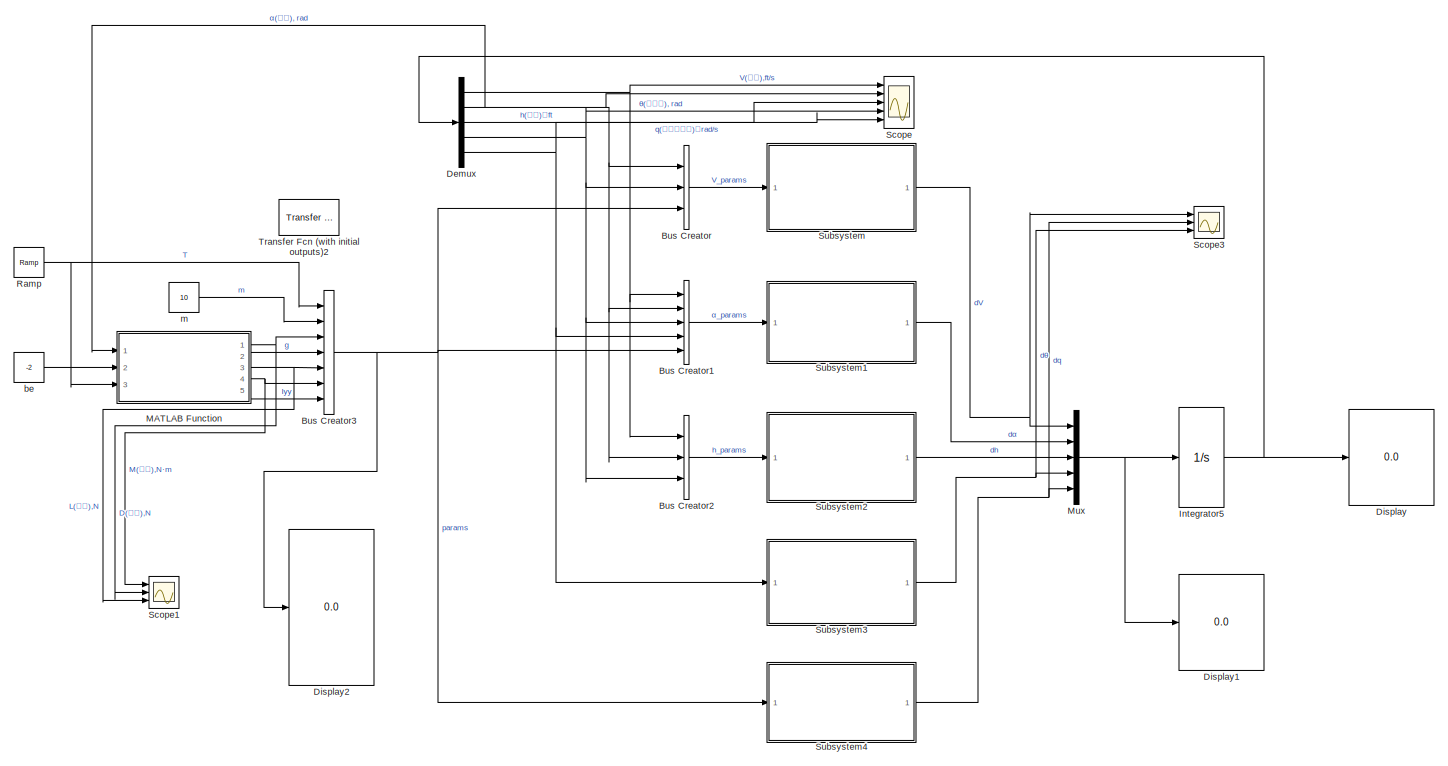
[diagram: root canvas - part 1/2, most of the canvas]
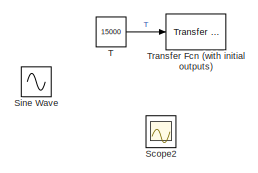
[diagram: root canvas - part 2/2, bottom left region]
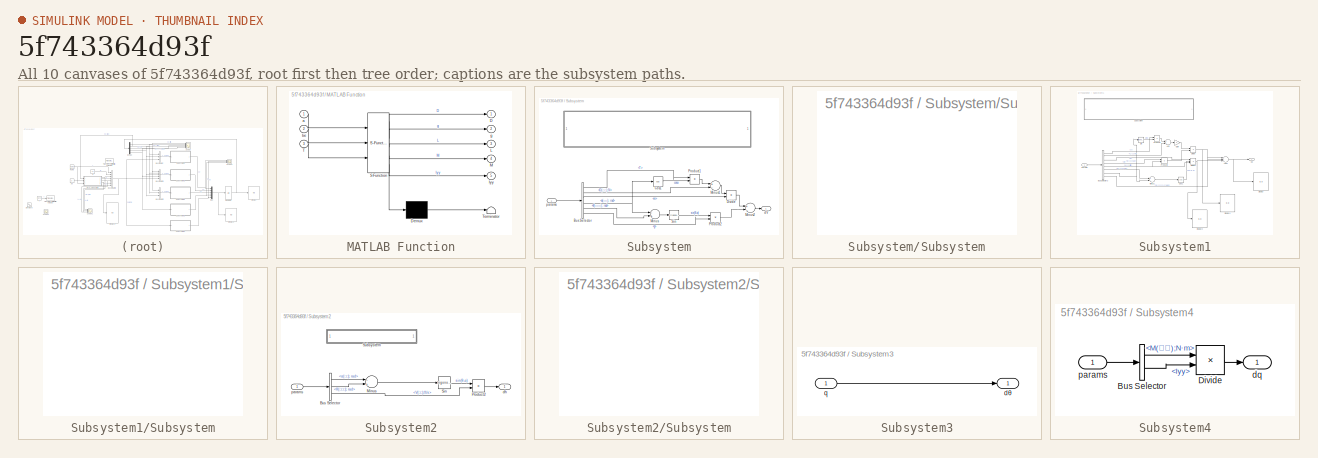
[diagram: thumbnail index - all 10 canvases of the model, root first then tree order]
MODEL slx_5f743364d93f
KIND model
CONFIG AbsTol = auto
CONFIG EnableMultiTasking = off
CONFIG FixedStep = 0.1
CONFIG MaxStep = auto
CONFIG MinStep = auto
CONFIG RelTol = 1e-3
CONFIG SampleTimeConstraint = Unconstrained
CONFIG Solver = VariableStepAuto
CONFIG SolverName = VariableStepAuto
CONFIG StartTime = 0.0
CONFIG StopTime = 20
BLOCK [BusCreator] Bus Creator
  DisplayOption = bar
  InheritFromInputs = on
  Inputs = 3
  Ports = [3, 1]
BLOCK [BusCreator] Bus Creator1
  DisplayOption = bar
  InheritFromInputs = on
  Inputs = 5
  Ports = [5, 1]
BLOCK [BusCreator] Bus Creator2
  DisplayOption = bar
  InheritFromInputs = on
  Inputs = 3
  Ports = [3, 1]
BLOCK [BusCreator] Bus Creator3
  DisplayOption = bar
  InheritFromInputs = on
  Inputs = 7
  Ports = [7, 1]
BLOCK [Demux] Demux
  DisplayOption = bar
  Outputs = 5
  Ports = [1, 5]
BLOCK [Display] Display
  Decimation = 1
  Ports = [1]
BLOCK [Display] Display1
  Decimation = 1
  Ports = [1]
BLOCK [Display] Display2
  Decimation = 1
  Ports = [1]
BLOCK [Integrator] Integrator5
  InitialCondition = eps
  Ports = [1, 1]
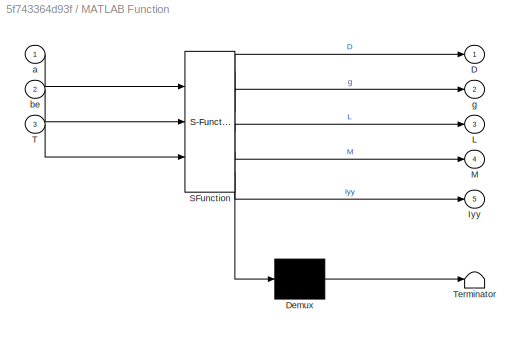
BLOCK [SubSystem] MATLAB Function
  ErrorFcn = Stateflow.Translate.translate
  PermitHierarchicalResolution = ExplicitOnly
  Ports = [3, 5]
  RequestExecContextInheritance = off
  SFBlockType = MATLAB Function
  TreatAsAtomicUnit = on
BLOCK [Demux] MATLAB Function/ Demux 
  Outputs = 1
  Ports = [1, 1]
BLOCK [S-Function] MATLAB Function/ SFunction 
  EnableBusSupport = on
  FunctionName = sf_sfun
  PortCounts = [3 6]
  Ports = [3, 6]
  SFcnIsStateOwnerBlock = off
  SFunctionDeploymentMode = off
  Tag = Stateflow S-Function 2
BLOCK [Terminator] MATLAB Function/ Terminator 
BLOCK [Outport] MATLAB Function/D
  IconDisplay = Port number
BLOCK [Outport] MATLAB Function/Iyy
  IconDisplay = Port number
  Port = 5
BLOCK [Outport] MATLAB Function/L
  IconDisplay = Port number
  Port = 3
BLOCK [Outport] MATLAB Function/M
  IconDisplay = Port number
  Port = 4
BLOCK [Inport] MATLAB Function/T
  IconDisplay = Port number
  Port = 3
BLOCK [Inport] MATLAB Function/a
  IconDisplay = Port number
BLOCK [Inport] MATLAB Function/be
  IconDisplay = Port number
  Port = 2
BLOCK [Outport] MATLAB Function/g
  IconDisplay = Port number
  Port = 2
BLOCK [Mux] Mux
  DisplayOption = bar
  Inputs = 5
  Ports = [5, 1]
BLOCK [Reference] Ramp  REF=simulink/Sources/Ramp
  Ports = [0, 1]
  SourceBlock = simulink/Sources/Ramp
  SourceProductBaseCode = SL
  SourceProductName = Simulink
  SourceType = Ramp
BLOCK [Scope] Scope
  Floating = off
  NumInputPorts = 5
  Ports = [5]
  ScopeSpecificationString = Simulink.scopes.TimeScopeBlockCfg('CurrentConfiguration', extmgr.ConfigurationSet(extmgr.Configuration('Core','General UI',true,'FigureColor',[1 1 1]),extmgr.Configuration('Core','Source UI',true),extmgr.Configuration('Sources','WiredSimulink',true),extmgr.Configuration('Visuals','Time Domain',true,'SerializedDisplays',{struct('MinYLimReal','-366.29033','MaxYLimReal','3296.613','YLabelReal','','Mi...<+5696ch>
BLOCK [Scope] Scope1
  Floating = off
  NumInputPorts = 3
  Ports = [3]
  ScopeSpecificationString = Simulink.scopes.TimeScopeBlockCfg('CurrentConfiguration', extmgr.ConfigurationSet(extmgr.Configuration('Core','General UI',true,'FigureColor',[1 1 1]),extmgr.Configuration('Core','Source UI',true),extmgr.Configuration('Sources','WiredSimulink',true,'DataLoggingVariableName','ScopeData1'),extmgr.Configuration('Visuals','Time Domain',true,'SerializedDisplays',{struct('MinYLimReal','15635.01871','Max...<+4000ch>
BLOCK [Scope] Scope2
  Floating = off
  NumInputPorts = 3
  Ports = [3]
  ScopeSpecificationString = Simulink.scopes.TimeScopeBlockCfg('CurrentConfiguration', extmgr.ConfigurationSet(extmgr.Configuration('Core','General UI',true,'FigureColor',[1 1 1]),extmgr.Configuration('Core','Source UI',true),extmgr.Configuration('Sources','WiredSimulink',true,'DataLoggingVariableName','ScopeData2'),extmgr.Configuration('Visuals','Time Domain',true,'SerializedDisplays',{struct('MinYLimReal','22915.45205','Max...<+3964ch>
BLOCK [Scope] Scope3
  Floating = off
  NumInputPorts = 3
  Ports = [3]
  ScopeSpecificationString = Simulink.scopes.TimeScopeBlockCfg('CurrentConfiguration', extmgr.ConfigurationSet(extmgr.Configuration('Core','General UI',true,'FigureColor',[1 1 1]),extmgr.Configuration('Core','Source UI',true),extmgr.Configuration('Sources','WiredSimulink',true,'DataLoggingVariableName','ScopeData3'),extmgr.Configuration('Visuals','Time Domain',true,'SerializedDisplays',{struct('MinYLimReal','-3086.74716','Max...<+3963ch>
BLOCK [Sin] Sine Wave
  Amplitude = 2500
  Bias = 15000
  Frequency = 0.5
  Ports = [0, 1]
  SampleTime = 0
BLOCK [SubSystem] Subsystem
  Ports = [1, 1]
  RequestExecContextInheritance = off
BLOCK [BusSelector] Subsystem/Bus Selector
  OutputAsBus = off
  OutputSignals = params.T,params.D(阻力);N,params.m,α(攻角);  rad,θ(俯仰角); rad,params.g
  Ports = [1, 6]
BLOCK [Trigonometry] Subsystem/Cos1
  Operator = cos
  Ports = [1, 1]
BLOCK [Product] Subsystem/Divide
  InputSameDT = off
  Inputs = */
  OutDataTypeStr = Inherit: Inherit via internal rule
  Ports = [2, 1]
  RndMeth = Floor
  SaturateOnIntegerOverflow = off
BLOCK [Sum] Subsystem/Minus
  InputSameDT = off
  Inputs = -+
  OutDataTypeStr = Inherit: Inherit via internal rule
  Ports = [2, 1]
  SaturateOnIntegerOverflow = off
BLOCK [Sum] Subsystem/Minus1
  InputSameDT = off
  Inputs = +-
  OutDataTypeStr = Inherit: Inherit via internal rule
  Ports = [2, 1]
  SaturateOnIntegerOverflow = off
BLOCK [Sum] Subsystem/Minus2
  InputSameDT = off
  Inputs = +-
  OutDataTypeStr = Inherit: Inherit via internal rule
  Ports = [2, 1]
  SaturateOnIntegerOverflow = off
BLOCK [Product] Subsystem/Product1
  InputSameDT = off
  OutDataTypeStr = Inherit: Inherit via internal rule
  Ports = [2, 1]
  RndMeth = Floor
  SaturateOnIntegerOverflow = off
BLOCK [Product] Subsystem/Product2
  InputSameDT = off
  OutDataTypeStr = Inherit: Inherit via internal rule
  Ports = [2, 1]
  RndMeth = Floor
  SaturateOnIntegerOverflow = off
BLOCK [Trigonometry] Subsystem/Sin
  Ports = [1, 1]
BLOCK [SubSystem] Subsystem/Subsystem
  Ports = []
  RequestExecContextInheritance = off
BLOCK [Outport] Subsystem/dV
  IconDisplay = Port number
BLOCK [Inport] Subsystem/params
  IconDisplay = Port number
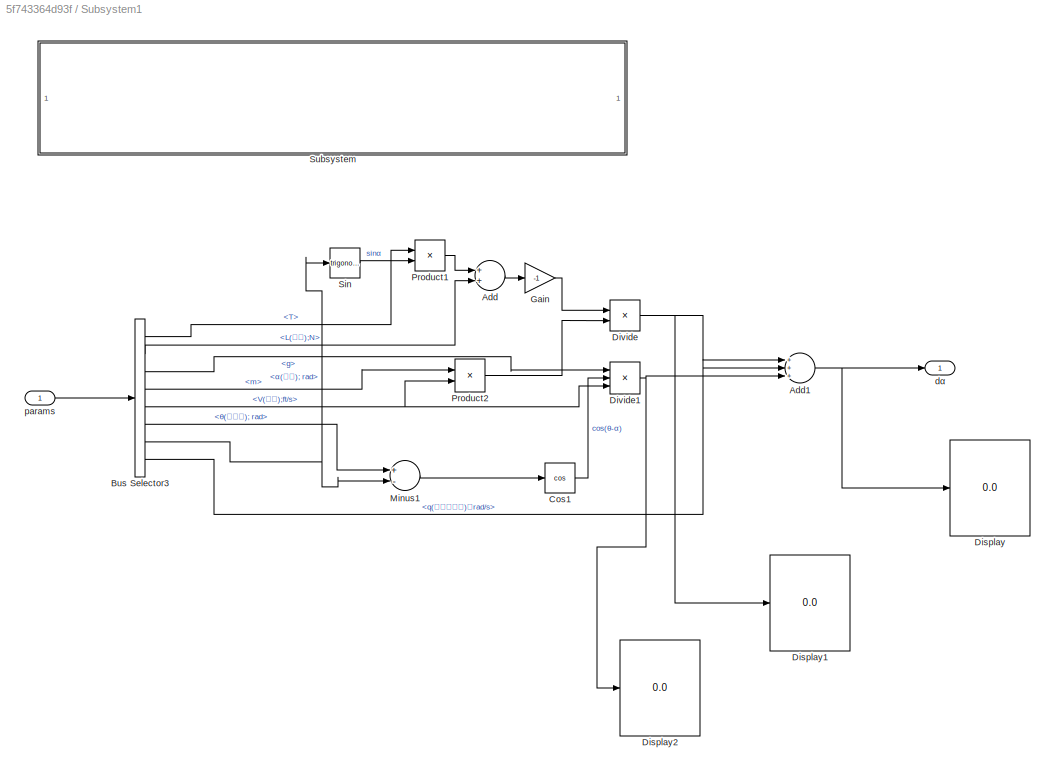
BLOCK [SubSystem] Subsystem1
  Ports = [1, 1]
  RequestExecContextInheritance = off
BLOCK [Sum] Subsystem1/Add
  InputSameDT = off
  OutDataTypeStr = Inherit: Inherit via internal rule
  Ports = [2, 1]
  SaturateOnIntegerOverflow = off
BLOCK [Sum] Subsystem1/Add1
  InputSameDT = off
  Inputs = +++
  OutDataTypeStr = Inherit: Inherit via internal rule
  Ports = [3, 1]
  SaturateOnIntegerOverflow = off
BLOCK [BusSelector] Subsystem1/Bus Selector3
  OutputAsBus = off
  OutputSignals = params.T,params.L(升力);N,params.g,params.m,V(速度);ft/s,θ(俯仰角); rad,α(攻角);  rad,q(俯仰角速率)，rad/s
  Ports = [1, 8]
BLOCK [Trigonometry] Subsystem1/Cos1
  Operator = cos
  Ports = [1, 1]
BLOCK [Display] Subsystem1/Display
  Decimation = 1
  Ports = [1]
BLOCK [Display] Subsystem1/Display1
  Decimation = 1
  Ports = [1]
BLOCK [Display] Subsystem1/Display2
  Decimation = 1
  Ports = [1]
BLOCK [Product] Subsystem1/Divide
  InputSameDT = off
  Inputs = */
  OutDataTypeStr = Inherit: Inherit via internal rule
  Ports = [2, 1]
  RndMeth = Floor
  SaturateOnIntegerOverflow = off
BLOCK [Product] Subsystem1/Divide1
  InputSameDT = off
  Inputs = **/
  OutDataTypeStr = Inherit: Inherit via internal rule
  Ports = [3, 1]
  RndMeth = Floor
  SaturateOnIntegerOverflow = off
BLOCK [Gain] Subsystem1/Gain
  Gain = -1
  OutDataTypeStr = Inherit: Inherit via internal rule
  ParamDataTypeStr = Inherit: Inherit via internal rule
  SaturateOnIntegerOverflow = off
BLOCK [Sum] Subsystem1/Minus1
  InputSameDT = off
  Inputs = +-
  OutDataTypeStr = Inherit: Inherit via internal rule
  Ports = [2, 1]
  SaturateOnIntegerOverflow = off
BLOCK [Product] Subsystem1/Product1
  InputSameDT = off
  OutDataTypeStr = Inherit: Inherit via internal rule
  Ports = [2, 1]
  RndMeth = Floor
  SaturateOnIntegerOverflow = off
BLOCK [Product] Subsystem1/Product2
  InputSameDT = off
  OutDataTypeStr = Inherit: Inherit via internal rule
  Ports = [2, 1]
  RndMeth = Floor
  SaturateOnIntegerOverflow = off
BLOCK [Trigonometry] Subsystem1/Sin
  Ports = [1, 1]
BLOCK [SubSystem] Subsystem1/Subsystem
  Ports = []
  RequestExecContextInheritance = off
BLOCK [Outport] Subsystem1/dα
  IconDisplay = Port number
BLOCK [Inport] Subsystem1/params
  IconDisplay = Port number
BLOCK [SubSystem] Subsystem2
  Ports = [1, 1]
  RequestExecContextInheritance = off
BLOCK [BusSelector] Subsystem2/Bus Selector
  OutputAsBus = off
  OutputSignals = α(攻角);  rad,θ(俯仰角); rad,V(速度);ft/s
  Ports = [1, 3]
BLOCK [Sum] Subsystem2/Minus
  InputSameDT = off
  Inputs = -+
  OutDataTypeStr = Inherit: Inherit via internal rule
  Ports = [2, 1]
  SaturateOnIntegerOverflow = off
BLOCK [Product] Subsystem2/Product2
  InputSameDT = off
  OutDataTypeStr = Inherit: Inherit via internal rule
  Ports = [2, 1]
  RndMeth = Floor
  SaturateOnIntegerOverflow = off
BLOCK [Trigonometry] Subsystem2/Sin
  Ports = [1, 1]
BLOCK [SubSystem] Subsystem2/Subsystem
  Ports = []
  RequestExecContextInheritance = off
BLOCK [Outport] Subsystem2/dh
  IconDisplay = Port number
BLOCK [Inport] Subsystem2/params
  IconDisplay = Port number
BLOCK [SubSystem] Subsystem3
  Ports = [1, 1]
  RequestExecContextInheritance = off
BLOCK [Outport] Subsystem3/dθ
  IconDisplay = Port number
BLOCK [Inport] Subsystem3/q
  IconDisplay = Port number
BLOCK [SubSystem] Subsystem4
  Ports = [1, 1]
  RequestExecContextInheritance = off
BLOCK [BusSelector] Subsystem4/Bus Selector
  OutputAsBus = off
  OutputSignals = M(力矩);N·m,Iyy
  Ports = [1, 2]
BLOCK [Product] Subsystem4/Divide
  InputSameDT = off
  Inputs = */
  OutDataTypeStr = Inherit: Inherit via internal rule
  Ports = [2, 1]
  RndMeth = Floor
  SaturateOnIntegerOverflow = off
BLOCK [Outport] Subsystem4/dq
  IconDisplay = Port number
BLOCK [Inport] Subsystem4/params
  IconDisplay = Port number
BLOCK [Constant] T
  Value = 15000
BLOCK [Reference] Transfer Fcn (with initial outputs)  REF=simulink_extras/Additional
Linear/Transfer Fcn
(with initial outputs)
  Ports = [1, 1]
  SourceBlock = simulink_extras/Additional\nLinear/Transfer Fcn\n(with initial outputs)
  SourceProductBaseCode = SL
  SourceProductName = Simulink
  SourceType = Transfer Function with Initial Outputs
BLOCK [Reference] Transfer Fcn (with initial outputs)2  REF=simulink_extras/Additional
Linear/Transfer Fcn
(with initial outputs)
  Ports = [1, 1]
  SourceBlock = simulink_extras/Additional\nLinear/Transfer Fcn\n(with initial outputs)
  SourceProductBaseCode = SL
  SourceProductName = Simulink
  SourceType = Transfer Function with Initial Outputs
BLOCK [Constant] be
  Value = -2
BLOCK [Constant] m
  Value = 10
LINE Bus Creator1:1 -> Subsystem1:1
LINE Bus Creator2:1 -> Subsystem2:1
NET Bus Creator3:1 -> Bus Creator1:5, Bus Creator:3, Display2:1, Subsystem4:1
LINE Bus Creator:1 -> Subsystem:1
NET Demux:1 -> Bus Creator1:1, Bus Creator2:1, Scope:1
NET Demux:2 -> Bus Creator1:2, Bus Creator2:2, Bus Creator:1, MATLAB Function:1, Scope:2
LINE Demux:3 -> Scope:3
NET Demux:4 -> Bus Creator1:3, Bus Creator2:3, Bus Creator:2, Scope:4
NET Demux:5 -> Bus Creator1:4, Scope:5, Subsystem3:1
NET Integrator5:1 -> Demux:1, Display:1
NET MATLAB Function:1 -> Bus Creator3:3, Scope1:2
LINE MATLAB Function:2 -> Bus Creator3:4
NET MATLAB Function:3 -> Bus Creator3:5, Scope1:3
NET MATLAB Function:4 -> Bus Creator3:6, Scope1:1
LINE MATLAB Function:5 -> Bus Creator3:7
NET Mux:1 -> Display1:1, Integrator5:1
NET Ramp:1 -> Bus Creator3:1, MATLAB Function:3
LINE Subsystem/Bus Selector:1 -> Subsystem/Product1:1
LINE Subsystem/Bus Selector:2 -> Subsystem/Minus1:2
LINE Subsystem/Bus Selector:3 -> Subsystem/Divide:2
NET Subsystem/Bus Selector:4 -> Subsystem/Cos1:1, Subsystem/Minus:1
LINE Subsystem/Bus Selector:5 -> Subsystem/Minus:2
LINE Subsystem/Bus Selector:6 -> Subsystem/Product2:2
LINE Subsystem/Cos1:1 -> Subsystem/Product1:2
LINE Subsystem/Divide:1 -> Subsystem/Minus2:1
LINE Subsystem/Minus1:1 -> Subsystem/Divide:1
LINE Subsystem/Minus2:1 -> Subsystem/dV:1
LINE Subsystem/Minus:1 -> Subsystem/Sin:1
LINE Subsystem/Product1:1 -> Subsystem/Minus1:1
LINE Subsystem/Product2:1 -> Subsystem/Minus2:2
LINE Subsystem/Sin:1 -> Subsystem/Product2:1
LINE Subsystem/params:1 -> Subsystem/Bus Selector:1
NET Subsystem1/Add1:1 -> Subsystem1/Display:1, Subsystem1/dα:1
LINE Subsystem1/Add:1 -> Subsystem1/Gain:1
LINE Subsystem1/Bus Selector3:1 -> Subsystem1/Product1:1
LINE Subsystem1/Bus Selector3:2 -> Subsystem1/Add:2
LINE Subsystem1/Bus Selector3:3 -> Subsystem1/Divide1:1
LINE Subsystem1/Bus Selector3:4 -> Subsystem1/Product2:1
NET Subsystem1/Bus Selector3:5 -> Subsystem1/Divide1:3, Subsystem1/Product2:2
LINE Subsystem1/Bus Selector3:6 -> Subsystem1/Minus1:1
NET Subsystem1/Bus Selector3:7 -> Subsystem1/Minus1:2, Subsystem1/Sin:1
LINE Subsystem1/Bus Selector3:8 -> Subsystem1/Add1:2
LINE Subsystem1/Cos1:1 -> Subsystem1/Divide1:2
NET Subsystem1/Divide1:1 -> Subsystem1/Add1:3, Subsystem1/Display2:1
NET Subsystem1/Divide:1 -> Subsystem1/Add1:1, Subsystem1/Display1:1
LINE Subsystem1/Gain:1 -> Subsystem1/Divide:1
LINE Subsystem1/Minus1:1 -> Subsystem1/Cos1:1
LINE Subsystem1/Product1:1 -> Subsystem1/Add:1
LINE Subsystem1/Product2:1 -> Subsystem1/Divide:2
LINE Subsystem1/Sin:1 -> Subsystem1/Product1:2
LINE Subsystem1/params:1 -> Subsystem1/Bus Selector3:1
LINE Subsystem1:1 -> Mux:2
LINE Subsystem2/Bus Selector:1 -> Subsystem2/Minus:1
LINE Subsystem2/Bus Selector:2 -> Subsystem2/Minus:2
LINE Subsystem2/Bus Selector:3 -> Subsystem2/Product2:2
LINE Subsystem2/Minus:1 -> Subsystem2/Sin:1
LINE Subsystem2/Product2:1 -> Subsystem2/dh:1
LINE Subsystem2/Sin:1 -> Subsystem2/Product2:1
LINE Subsystem2/params:1 -> Subsystem2/Bus Selector:1
LINE Subsystem2:1 -> Mux:3
LINE Subsystem3/q:1 -> Subsystem3/dθ:1
NET Subsystem3:1 -> Mux:4, Scope3:3
LINE Subsystem4/Bus Selector:1 -> Subsystem4/Divide:1
LINE Subsystem4/Bus Selector:2 -> Subsystem4/Divide:2
LINE Subsystem4/Divide:1 -> Subsystem4/dq:1
LINE Subsystem4/params:1 -> Subsystem4/Bus Selector:1
NET Subsystem4:1 -> Mux:5, Scope3:2
NET Subsystem:1 -> Mux:1, Scope3:1
LINE T:1 -> Transfer Fcn (with initial outputs):1
LINE be:1 -> MATLAB Function:2
LINE m:1 -> Bus Creator3:2
note: NET lines group one-source signal fan-out (src -> all destinations, sorted); 1:1 wires keep LINE
CHART MATLAB Function states=1 transitions=1
  STATE_LABEL 'eML_blk_kernel()'
  STATE_LABEL 'SCRIPT:\nfunction [D, g, L, M, Iyy] = HFV_Params(a, be, T)\n\nm = 30;\ng = 32.17;\nIyy = 500000;\nS = 17;\np0 = 6.7429*10^(-5);\nhs = 21358.8;\nh0 = 85000;\nc_ = 17;\nzT = 8.36;\nce = -1.2897;\nq_ = 70;\n\nC0L = -0.018714;\nCaL = 4.6773;\nCbeL = 0.76224;\nC0D = 0.010131;\nCaD = -0.045315;\nCa2D = 5.8224;\nCbeD = 2.7699*0.0001;\nCbe2D = 0.81993;\nC0Ma = -0.18979;\nCaMa = 2.1335;\nCa2Ma = 6.2926;\n\n% b1 = -3.7693*10^5;\n% b2 ...<+357ch>'
